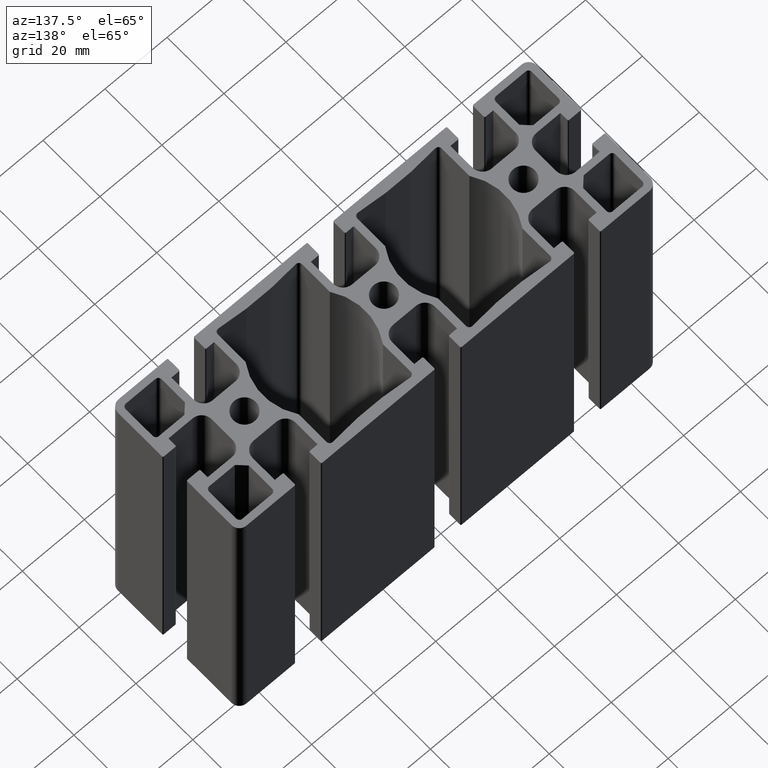
[diagram: clean part render]
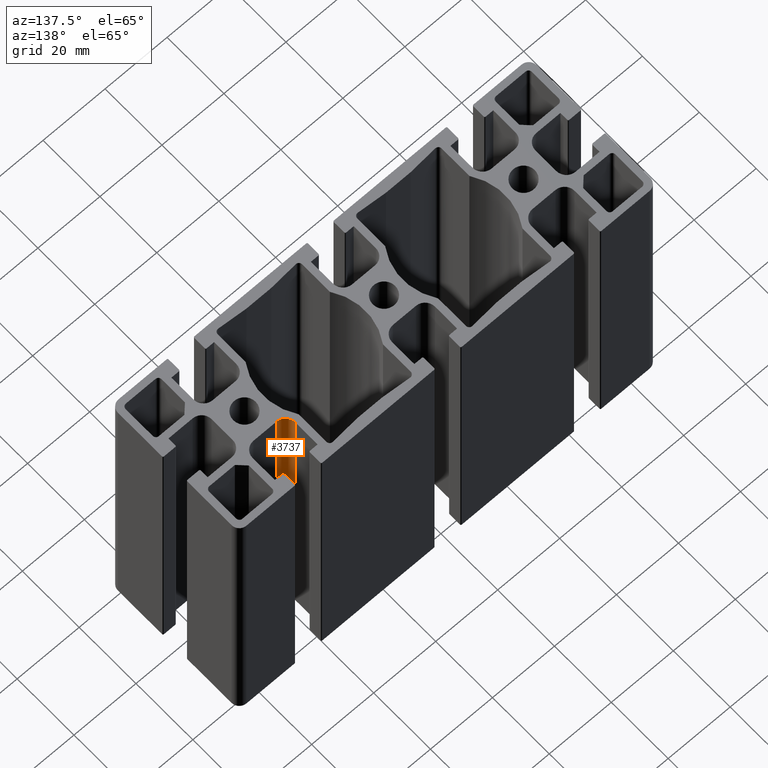
[diagram: same view with one face highlighted and labeled with its STEP entity id]
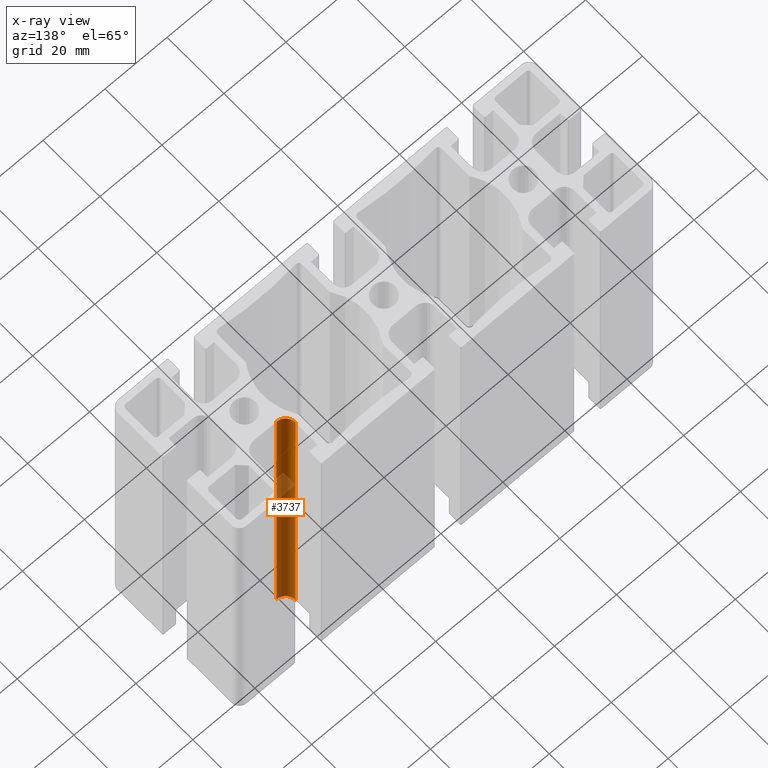
[diagram: x-ray of the same camera — body ghosted, the highlighted face saturated]
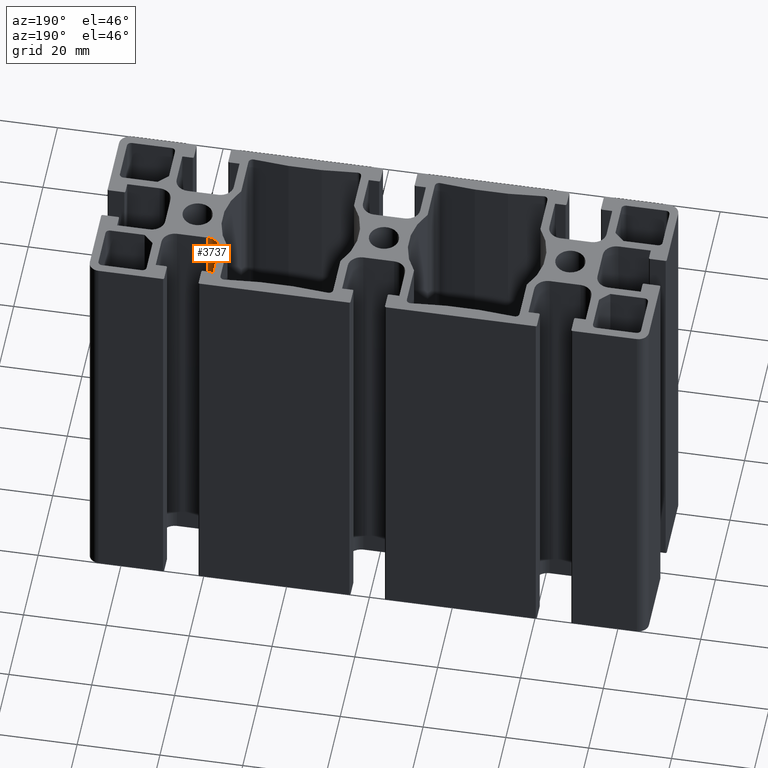
[diagram: same view with one face highlighted and labeled with its STEP entity id]
A machine part, auxiliary view. The second image highlights one B-rep face of the part: STEP entity #3737.
The next image is the same camera in x-ray: the body ghosted, the highlighted face saturated — about 66% of this face is hidden behind the body in this view.
A second angle (auxiliary view) of the same face is appended — the face is thin or edge-on in the first view.
In plain terms, the highlighted cylindrical surface (edge-blend (fillet) strip) has radius 3.2 mm, axis along (0, 0, 1).
Its self-contained STEP definition (entity closure, byte-faithful):
#132=CIRCLE('',#4025,3.2);
#133=CIRCLE('',#4026,3.2);
#242=CYLINDRICAL_SURFACE('',#4024,3.2);
#380=FACE_OUTER_BOUND('',#569,.T.);
#569=EDGE_LOOP('',(#2832,#2833,#2834,#2835));
#904=LINE('',#5933,#1304);
#905=LINE('',#5936,#1305);
#1304=VECTOR('',#4812,100.);
#1305=VECTOR('',#4815,100.);
#1700=VERTEX_POINT('',#5929);
#1701=VERTEX_POINT('',#5930);
#1702=VERTEX_POINT('',#5932);
#1703=VERTEX_POINT('',#5934);
#2174=EDGE_CURVE('',#1700,#1701,#132,.T.);
#2175=EDGE_CURVE('',#1702,#1700,#904,.T.);
#2176=EDGE_CURVE('',#1703,#1702,#133,.T.);
#2177=EDGE_CURVE('',#1703,#1701,#905,.T.);
#2832=ORIENTED_EDGE('',*,*,#2174,.F.);
#2833=ORIENTED_EDGE('',*,*,#2175,.F.);
#2834=ORIENTED_EDGE('',*,*,#2176,.F.);
#2835=ORIENTED_EDGE('',*,*,#2177,.T.);
#3737=ADVANCED_FACE('',(#380),#242,.F.);
#4024=AXIS2_PLACEMENT_3D('',#5928,#4808,#4809);
#4025=AXIS2_PLACEMENT_3D('',#5931,#4810,#4811);
#4026=AXIS2_PLACEMENT_3D('',#5935,#4813,#4814);
#4808=DIRECTION('center_axis',(0.,0.,1.));
#4809=DIRECTION('ref_axis',(-1.,0.,0.));
#4810=DIRECTION('center_axis',(0.,0.,-1.));
#4811=DIRECTION('ref_axis',(-1.,0.,0.));
#4812=DIRECTION('',(0.,0.,1.));
#4813=DIRECTION('center_axis',(0.,0.,1.));
#4814=DIRECTION('ref_axis',(-1.,0.,0.));
#4815=DIRECTION('',(0.,0.,1.));
#5928=CARTESIAN_POINT('Origin',(41.30000000001,10.39999999999,0.));
#5929=CARTESIAN_POINT('',(41.30000000001,7.19999999999002,100.));
#5930=CARTESIAN_POINT('',(38.10000000001,10.39999999999,100.));
#5931=CARTESIAN_POINT('Origin',(41.30000000001,10.39999999999,100.));
#5932=CARTESIAN_POINT('',(41.30000000001,7.19999999999002,0.));
#5933=CARTESIAN_POINT('',(41.30000000001,7.19999999999002,0.));
#5934=CARTESIAN_POINT('',(38.10000000001,10.39999999999,0.));
#5935=CARTESIAN_POINT('Origin',(41.30000000001,10.39999999999,0.));
#5936=CARTESIAN_POINT('',(38.10000000001,10.39999999999,0.));